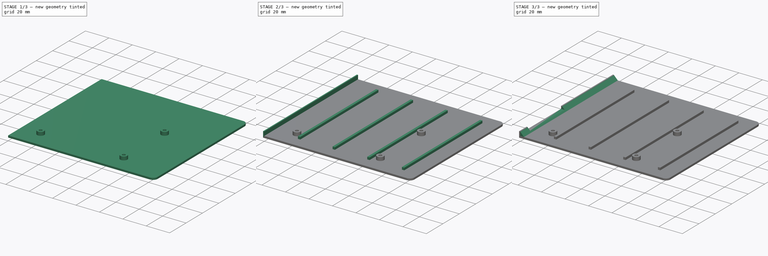
[diagram: build sequence overview — one tinted view per stage of 3, left to right]
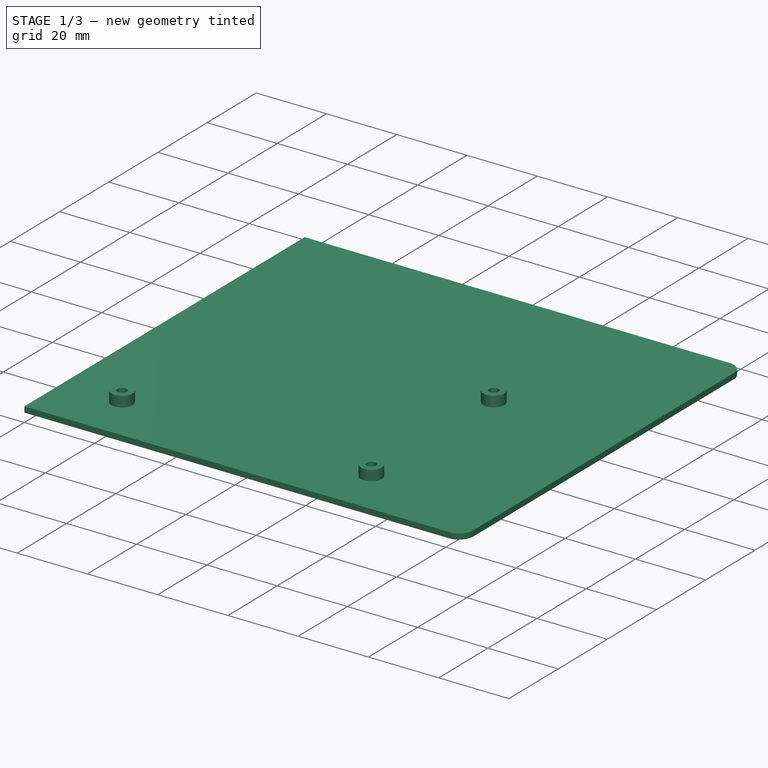
[diagram: stage 1 of 3 — iso view after this stage's code; geometry added in this stage tinted green]
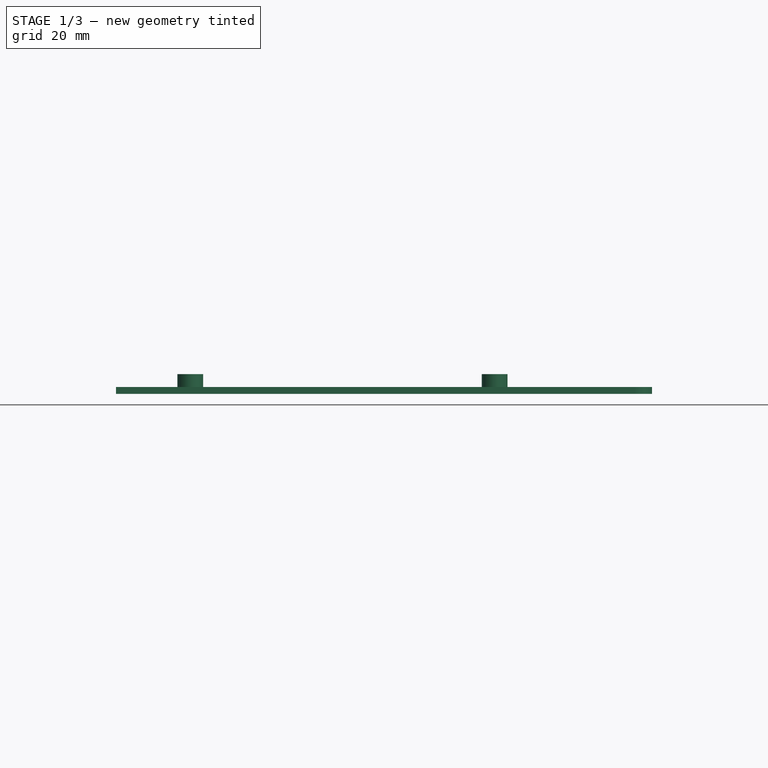
[diagram: stage 1 of 3 — front view after this stage's code; geometry added in this stage tinted green]
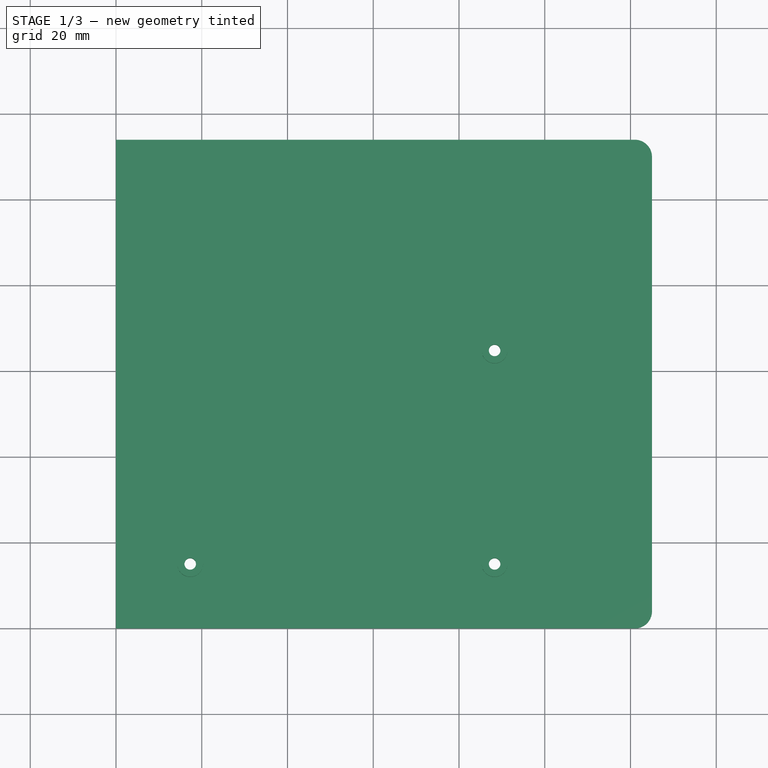
[diagram: stage 1 of 3 — top view after this stage's code; geometry added in this stage tinted green]
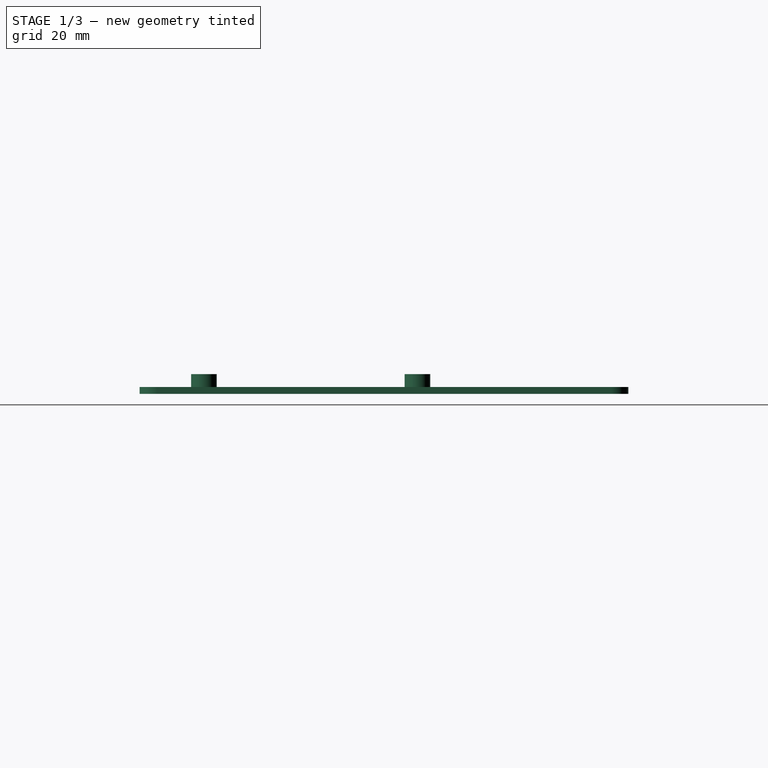
[diagram: stage 1 of 3 — right view after this stage's code; geometry added in this stage tinted green]
FCSTD DOCUMENT  (FreeCAD 0.20R29603 (Git))
Label: gotek-flat
License: All rights reserved
LicenseURL: http://en.wikipedia.org/wiki/All_rights_reserved
objects: Sketcher::SketchObject×5, PartDesign::Pad×4, PartDesign::Chamfer×1, PartDesign::Pocket×1, PartDesign::Body×1
note: 18 computed .brp shape members not serialized (recipe doc carries the construction recipe); baked Part::Feature solids carry a one-line shape summary decoded from their .brp

FEATURE [Sketcher::SketchObject] Sketch
  FullyConstrained = true
  MapMode = 5
  Support = -> [XY_Plane]
  sketch-geometry (11):
    g0: LineSegment StartX=0 StartY=0 StartZ=0 EndX=121 EndY=0 EndZ=0
    g1: LineSegment StartX=125 StartY=4 StartZ=0 EndX=125 EndY=110 EndZ=0
    g2: LineSegment StartX=121 StartY=114 StartZ=0 EndX=0 EndY=114 EndZ=0
    g3: LineSegment StartX=0 StartY=114 StartZ=0 EndX=0 EndY=0 EndZ=0
    g4: ArcOfCircle CenterX=121 CenterY=110 CenterZ=0 NormalX=0 NormalY=0 NormalZ=1 AngleXU=0 Radius=4 StartAngle=-9e-16 EndAngle=1.5708
    g5: ArcOfCircle CenterX=121 CenterY=4 CenterZ=0 NormalX=0 NormalY=0 NormalZ=1 AngleXU=0 Radius=4 StartAngle=4.71239 EndAngle=6.28319
    g6: Circle CenterX=17.3 CenterY=15 CenterZ=0 NormalX=0 NormalY=0 NormalZ=1 AngleXU=0 Radius=1.35
    g7: Circle CenterX=88.3 CenterY=64.8 CenterZ=0 NormalX=0 NormalY=0 NormalZ=1 AngleXU=0 Radius=1.35
    g8: Circle CenterX=88.3 CenterY=15 CenterZ=0 NormalX=0 NormalY=0 NormalZ=1 AngleXU=0 Radius=1.35
    g9: LineSegment StartX=17.3 StartY=15 StartZ=0 EndX=88.3 EndY=15 EndZ=0
    g10: LineSegment StartX=88.3 StartY=64.8 StartZ=0 EndX=88.3 EndY=15 EndZ=0
  constraints (28):
    c: Coincident(g2,g3)
    c: Coincident(g3,g0)
    c: Horizontal(g0)
    c: Horizontal(g2)
    c: Vertical(g1)
    c: Vertical(g3)
    c: Coincident(g0,g-1)
    c: Tangent(g2,g4) = -1.5708
    c: Tangent(g1,g4) = -1.5708
    c: Tangent(g1,g5) = -1.5708
    c: Tangent(g0,g5) = -1.5708
    c: Equal(g5,g4)
    c: DistanceY(g3,g3) = 114
    c: Radius(g5) = 4
    c: DistanceX(g0,g1) = 125
    c: Equal(g7,g6)
    c: Equal(g6,g8)
    c: Coincident(g9,g6)
    c: Coincident(g9,g8)
    c: Horizontal(g9)
    c: Coincident(g10,g7)
    c: Coincident(g10,g8)
    c: Vertical(g10)
    c: Diameter(g8) = 2.7
    c: DistanceY(g10,g10) = 49.8
    c: DistanceX(g9,g9) = 71
    c: DistanceX(g0,g6) = 17.3
    c: DistanceY(g0,g6) = 15
FEATURE [PartDesign::Pad] Pad
  Direction = (0,0,1)
  Length = 1.6
  Length2 = 10
  Profile = -> Sketch
  ReferenceAxis = -> Sketch [N_Axis]
  Type = 0
FEATURE [Sketcher::SketchObject] Sketch001
  ExternalGeometry = -> [Pad]
  FullyConstrained = true
  MapMode = 5
  Placement = pos=(0,0,1.6) rot=(0,0,1;0rad)
  Support = -> [Pad]
  sketch-geometry (6):
    g0: Circle CenterX=88.3 CenterY=15 CenterZ=0 NormalX=0 NormalY=0 NormalZ=1 AngleXU=0 Radius=1.35
    g1: Circle CenterX=88.3 CenterY=64.8 CenterZ=0 NormalX=0 NormalY=0 NormalZ=1 AngleXU=0 Radius=1.35
    g2: Circle CenterX=17.3 CenterY=15 CenterZ=0 NormalX=0 NormalY=0 NormalZ=1 AngleXU=0 Radius=1.35
    g3: Circle CenterX=88.3 CenterY=15 CenterZ=0 NormalX=0 NormalY=0 NormalZ=1 AngleXU=0 Radius=3
    g4: Circle CenterX=88.3 CenterY=64.8 CenterZ=0 NormalX=0 NormalY=0 NormalZ=1 AngleXU=0 Radius=3
    g5: Circle CenterX=17.3 CenterY=15 CenterZ=0 NormalX=0 NormalY=0 NormalZ=1 AngleXU=0 Radius=3
  constraints (12):
    c: Coincident(g0,g-3)
    c: Coincident(g1,g-4)
    c: Coincident(g2,g-5)
    c: Equal(g0,g1)
    c: Equal(g1,g2)
    c: Coincident(g3,g0)
    c: Coincident(g4,g1)
    c: Coincident(g5,g2)
    c: Equal(g5,g4)
    c: Equal(g4,g3)
    c: Equal(g0,g-3)
    c: Diameter(g3) = 6
FEATURE [PartDesign::Pad] Pad001
  BaseFeature = -> Pad
  Direction = (0,0,1)
  Length = 3
  Length2 = 10
  Profile = -> Sketch001
  ReferenceAxis = -> Sketch001 [N_Axis]
  Type = 0
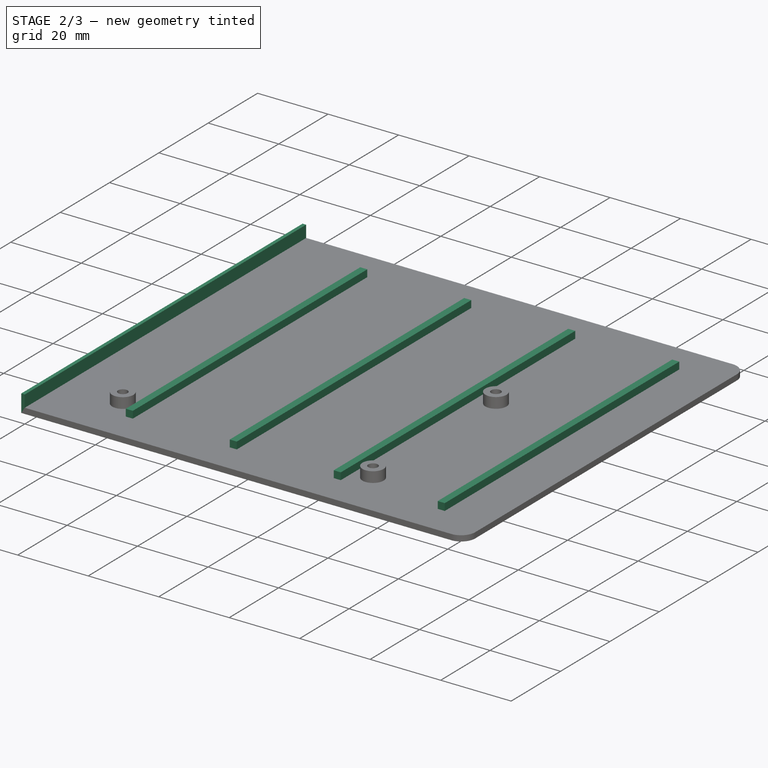
[diagram: stage 2 of 3 — iso view after this stage's code; geometry added in this stage tinted green]
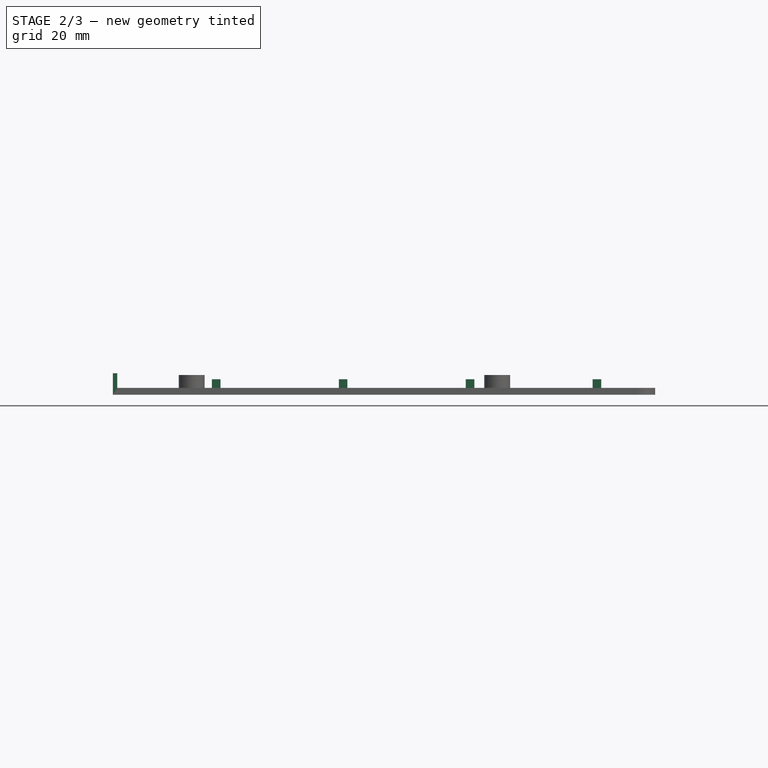
[diagram: stage 2 of 3 — front view after this stage's code; geometry added in this stage tinted green]
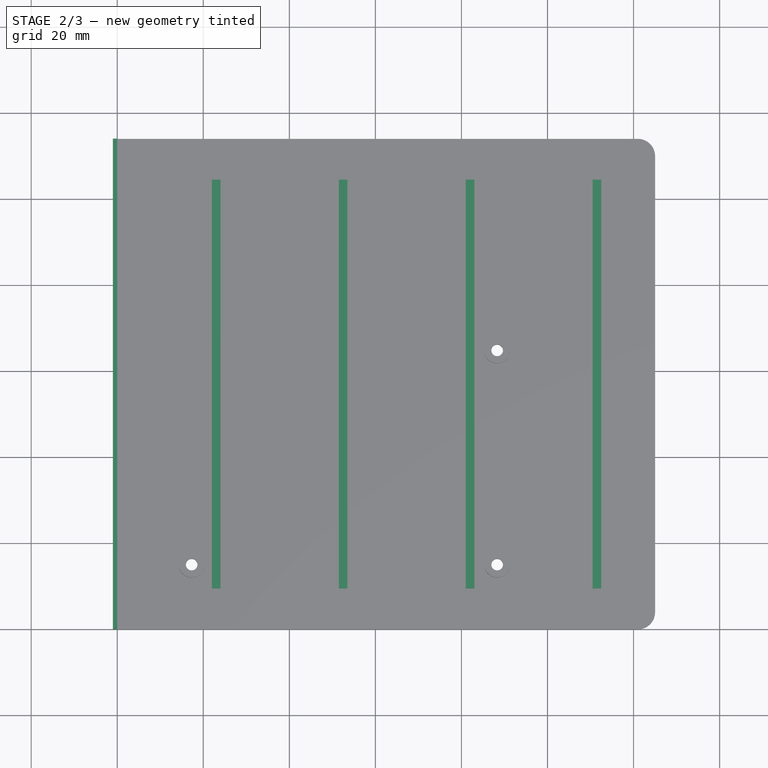
[diagram: stage 2 of 3 — top view after this stage's code; geometry added in this stage tinted green]
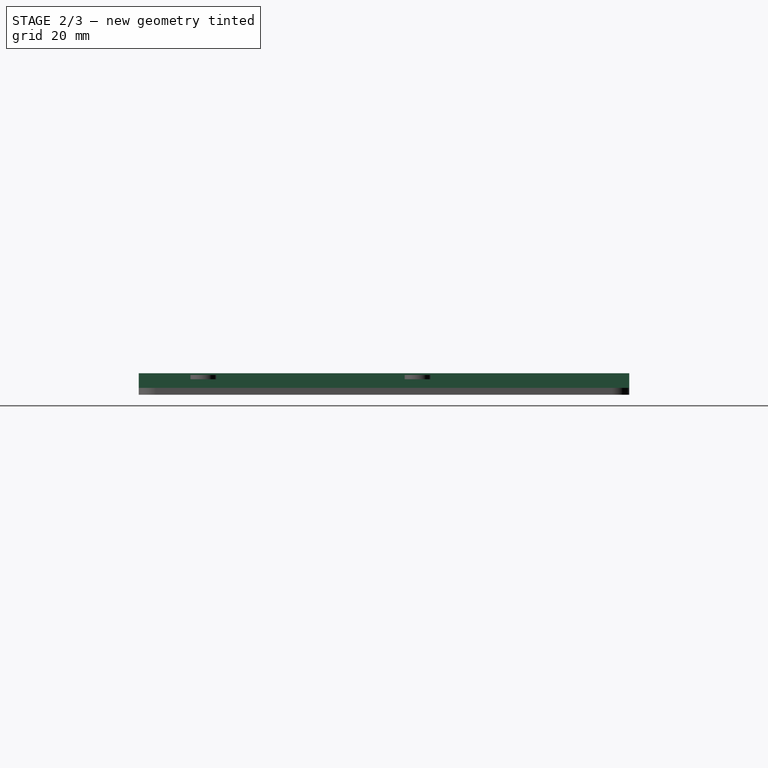
[diagram: stage 2 of 3 — right view after this stage's code; geometry added in this stage tinted green]
FEATURE [Sketcher::SketchObject] Sketch002
  ExternalGeometry = -> [Pad001]
  FullyConstrained = true
  MapMode = 5
  Placement = pos=(0,0,1.6) rot=(0,0,1;0rad)
  Support = -> [Pad001]
  sketch-geometry (21):
    g0: LineSegment StartX=22 StartY=104.5 StartZ=0 EndX=24 EndY=104.5 EndZ=0
    g1: LineSegment StartX=24 StartY=104.5 StartZ=0 EndX=24 EndY=9.5 EndZ=0
    g2: LineSegment StartX=24 StartY=9.5 StartZ=0 EndX=22 EndY=9.5 EndZ=0
    g3: LineSegment StartX=22 StartY=9.5 StartZ=0 EndX=22 EndY=104.5 EndZ=0
    g4: LineSegment StartX=51.5 StartY=104.5 StartZ=0 EndX=53.5 EndY=104.5 EndZ=0
    g5: LineSegment StartX=53.5 StartY=104.5 StartZ=0 EndX=53.5 EndY=9.5 EndZ=0
    g6: LineSegment StartX=53.5 StartY=9.5 StartZ=0 EndX=51.5 EndY=9.5 EndZ=0
    g7: LineSegment StartX=51.5 StartY=9.5 StartZ=0 EndX=51.5 EndY=104.5 EndZ=0
    g8: LineSegment StartX=81 StartY=104.5 StartZ=0 EndX=83 EndY=104.5 EndZ=0
    g9: LineSegment StartX=83 StartY=104.5 StartZ=0 EndX=83 EndY=9.5 EndZ=0
    g10: LineSegment StartX=83 StartY=9.5 StartZ=0 EndX=81 EndY=9.5 EndZ=0
    g11: LineSegment StartX=81 StartY=9.5 StartZ=0 EndX=81 EndY=104.5 EndZ=0
    g12: LineSegment StartX=112.5 StartY=104.5 StartZ=0 EndX=110.5 EndY=104.5 EndZ=0
    g13: LineSegment StartX=110.5 StartY=104.5 StartZ=0 EndX=110.5 EndY=9.5 EndZ=0
    g14: LineSegment StartX=110.5 StartY=9.5 StartZ=0 EndX=112.5 EndY=9.5 EndZ=0
    g15: LineSegment StartX=112.5 StartY=9.5 StartZ=0 EndX=112.5 EndY=104.5 EndZ=0
    g16: LineSegment StartX=24 StartY=104.5 StartZ=0 EndX=51.5 EndY=104.5 EndZ=0
    g17: LineSegment StartX=53.5 StartY=104.5 StartZ=0 EndX=81 EndY=104.5 EndZ=0
    g18: LineSegment StartX=83 StartY=104.5 StartZ=0 EndX=110.5 EndY=104.5 EndZ=0
    g19: LineSegment StartX=24 StartY=104.5 StartZ=0 EndX=24 EndY=114 EndZ=0
    g20: LineSegment StartX=24 StartY=9.5 StartZ=0 EndX=24 EndY=0 EndZ=0
  constraints (60):
    c: Coincident(g0,g1)
    c: Coincident(g1,g2)
    c: Coincident(g2,g3)
    c: Coincident(g3,g0)
    c: Horizontal(g0)
    c: Horizontal(g2)
    c: Vertical(g1)
    c: Vertical(g3)
    c: Coincident(g4,g5)
    c: Coincident(g5,g6)
    c: Coincident(g6,g7)
    c: Coincident(g7,g4)
    c: Horizontal(g4)
    c: Horizontal(g6)
    c: Vertical(g5)
    c: Vertical(g7)
    c: Coincident(g8,g9)
    c: Coincident(g9,g10)
    c: Coincident(g10,g11)
    c: Coincident(g11,g8)
    c: Horizontal(g8)
    c: Horizontal(g10)
    c: Vertical(g9)
    c: Vertical(g11)
    c: Coincident(g12,g13)
    c: Coincident(g13,g14)
    c: Coincident(g14,g15)
    c: Coincident(g15,g12)
    c: Horizontal(g12)
    c: Horizontal(g14)
    c: Vertical(g13)
    c: Vertical(g15)
    c: PointOnObject(g0,g4)
    c: PointOnObject(g4,g8)
    c: PointOnObject(g8,g12)
    c: Equal(g12,g8)
    c: Equal(g8,g4)
    c: Equal(g4,g0)
    c: Equal(g15,g9)
    c: Equal(g9,g5)
    c: Equal(g5,g1)
    c: Coincident(g16,g0)
    c: Coincident(g16,g4)
    c: Coincident(g17,g4)
    c: Coincident(g17,g8)
    c: Coincident(g18,g8)
    c: Coincident(g18,g12)
    c: Equal(g17,g18)
    c: Equal(g18,g16)
    c: DistanceX(g12,g12) = 2
    c: Coincident(g19,g0)
    c: PointOnObject(g19,g-3)
    c: Vertical(g19)
    c: Coincident(g20,g1)
    c: PointOnObject(g20,g-4)
    c: Vertical(g20)
    c: Equal(g20,g19)
    c: DistanceY(g1,g1) = 95
    c: DistanceX(g17,g17) = 27.5
    c: DistanceX(g-4,g2) = 22
FEATURE [PartDesign::Pad] Pad002
  BaseFeature = -> Pad001
  Direction = (0,0,1)
  Length = 2
  Length2 = 10
  Profile = -> Sketch002
  ReferenceAxis = -> Sketch002 [N_Axis]
  Type = 0
FEATURE [Sketcher::SketchObject] Sketch003
  ExternalGeometry = -> [Pad002]
  FullyConstrained = true
  MapMode = 5
  Placement = pos=(0,0,0) rot=(0.57735,-0.57735,-0.57735;2.0944rad)
  Support = -> [Pad002]
  sketch-geometry (4):
    g0: LineSegment StartX=-114 StartY=5 StartZ=0 EndX=0 EndY=5 EndZ=0
    g1: LineSegment StartX=0 StartY=5 StartZ=0 EndX=0 EndY=0 EndZ=0
    g2: LineSegment StartX=0 StartY=0 StartZ=0 EndX=-114 EndY=0 EndZ=0
    g3: LineSegment StartX=-114 StartY=0 StartZ=0 EndX=-114 EndY=5 EndZ=0
  constraints (12):
    c: Coincident(g0,g1)
    c: Coincident(g1,g2)
    c: Coincident(g2,g3)
    c: Coincident(g3,g0)
    c: Horizontal(g0)
    c: Horizontal(g2)
    c: Vertical(g1)
    c: Vertical(g3)
    c: PointOnObject(g-3,g3)
    c: PointOnObject(g-1,g2)
    c: PointOnObject(g-3,g1)
    c: DistanceY(g3,g3) = 5
FEATURE [PartDesign::Pad] Pad003
  BaseFeature = -> Pad002
  Direction = (-1,0,0)
  Length = 1
  Length2 = 10
  Profile = -> Sketch003
  ReferenceAxis = -> Sketch003 [N_Axis]
  Type = 0
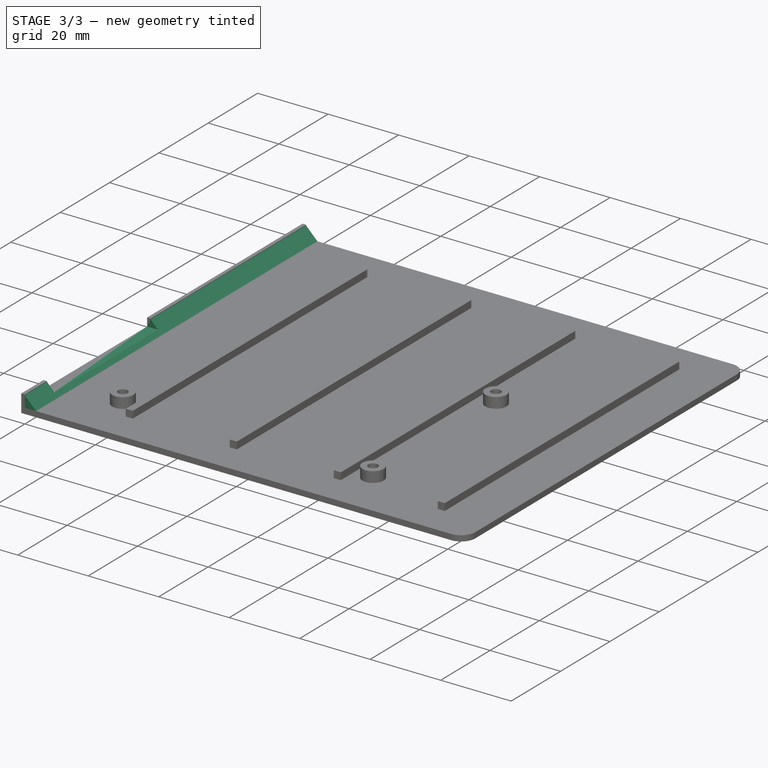
[diagram: stage 3 of 3 — iso view after this stage's code; geometry added in this stage tinted green]
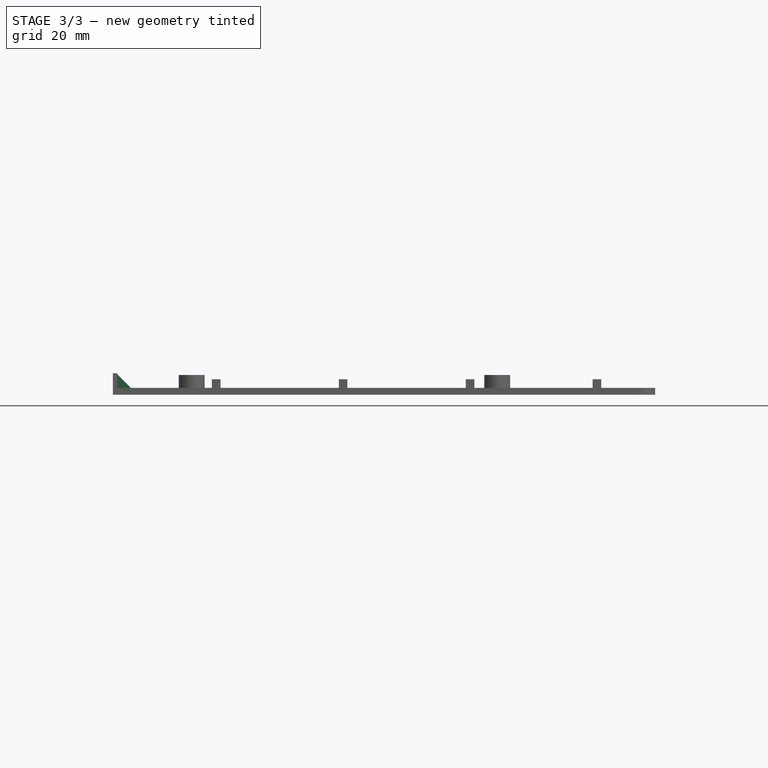
[diagram: stage 3 of 3 — front view after this stage's code; geometry added in this stage tinted green]
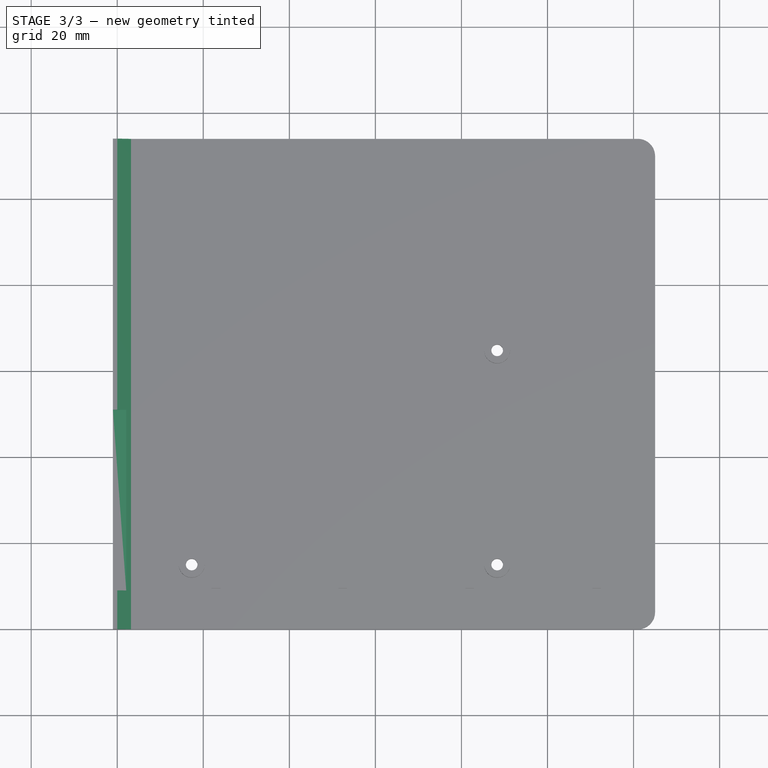
[diagram: stage 3 of 3 — top view after this stage's code; geometry added in this stage tinted green]
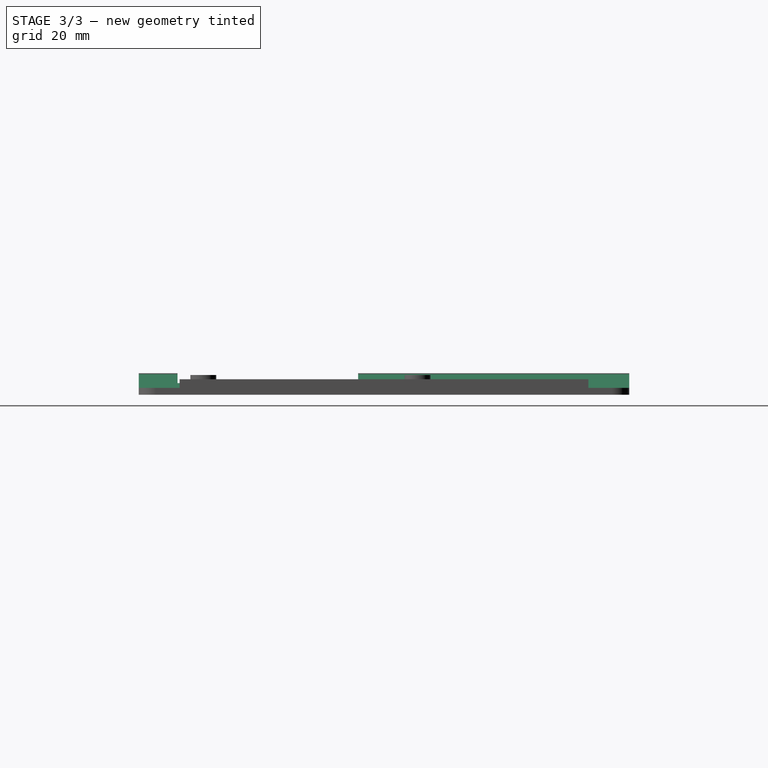
[diagram: stage 3 of 3 — right view after this stage's code; geometry added in this stage tinted green]
FEATURE [PartDesign::Chamfer] Chamfer
  Angle = 45
  Base = -> Pad003 [Edge19]
  BaseFeature = -> Pad003
  ChamferType = 0
  FlipDirection = false
  Size = 3.19
  Size2 = 1
  SupportTransform = false
  UseAllEdges = false
FEATURE [Sketcher::SketchObject] Sketch004
  ExternalGeometry = -> [Chamfer]
  FullyConstrained = true
  MapMode = 5
  Placement = pos=(-1,0,0) rot=(0.57735,-0.57735,-0.57735;2.0944rad)
  Support = -> [Chamfer]
  sketch-geometry (4):
    g0: LineSegment StartX=-51 StartY=5 StartZ=0 EndX=-9 EndY=5 EndZ=0
    g1: LineSegment StartX=-9 StartY=5 StartZ=0 EndX=-9 EndY=2.7 EndZ=0
    g2: LineSegment StartX=-9 StartY=2.7 StartZ=0 EndX=-51 EndY=2.7 EndZ=0
    g3: LineSegment StartX=-51 StartY=2.7 StartZ=0 EndX=-51 EndY=5 EndZ=0
  constraints (12):
    c: Coincident(g0,g1)
    c: Coincident(g1,g2)
    c: Coincident(g2,g3)
    c: Coincident(g3,g0)
    c: Horizontal(g0)
    c: Horizontal(g2)
    c: Vertical(g1)
    c: Vertical(g3)
    c: PointOnObject(g0,g-3)
    c: DistanceX(g0,g-3) = 9
    c: DistanceX(g0,g-3) = 51
    c: DistanceY(g1,g1) = 2.3
FEATURE [PartDesign::Pocket] Pocket
  BaseFeature = -> Chamfer
  Direction = (1,0,0)
  Length = 5
  Length2 = 5
  Profile = -> Sketch004
  ReferenceAxis = -> Sketch004 [N_Axis]
  Type = 0
FEATURE [PartDesign::Body] Body
  Group = -> [Sketch,Pad,Sketch001,Pad001,Sketch002,Pad002,Sketch003,Pad003,Chamfer,Sketch004,Pocket]
  Origin = -> Origin
  Tip = -> Pocket
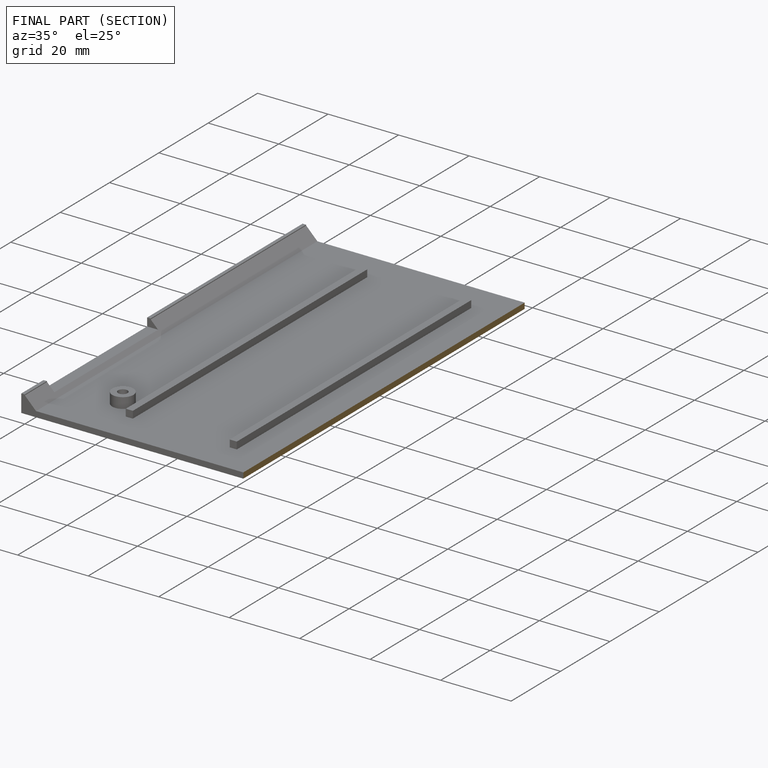
[diagram: finished part — half-section view (interior)]
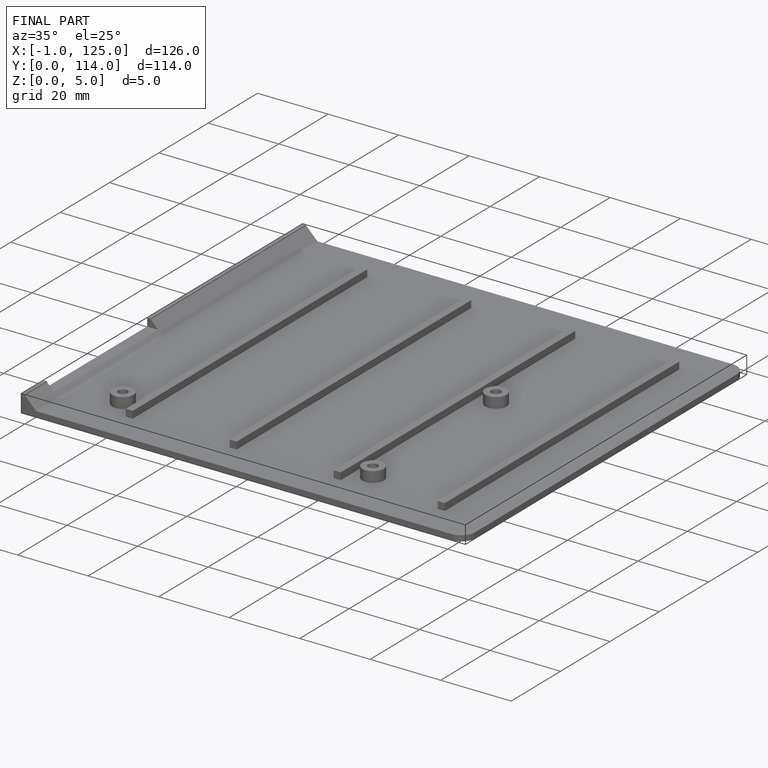
[diagram: finished part — iso view with bounding-box wireframe]
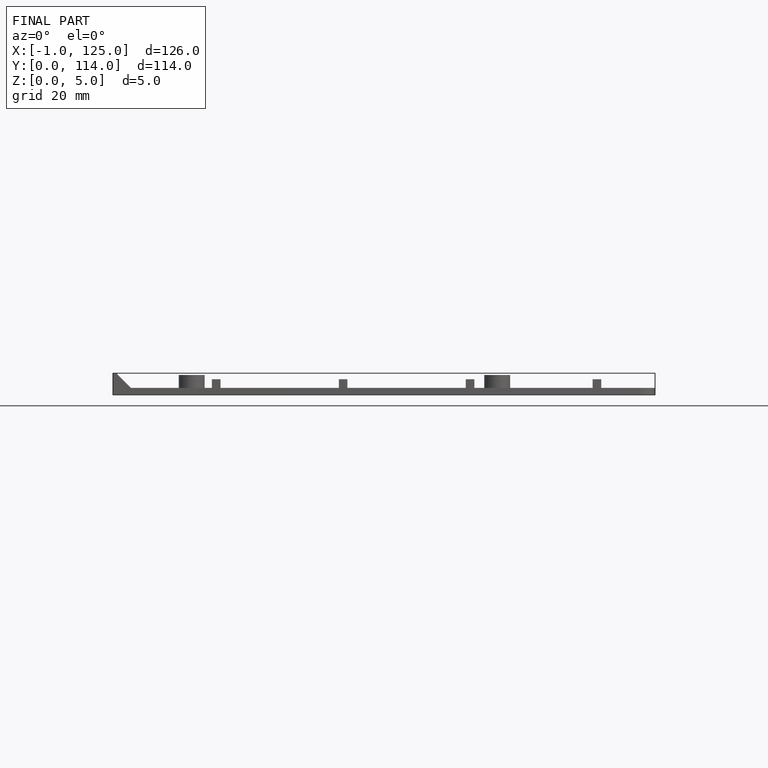
[diagram: finished part — front view with bounding-box wireframe]
